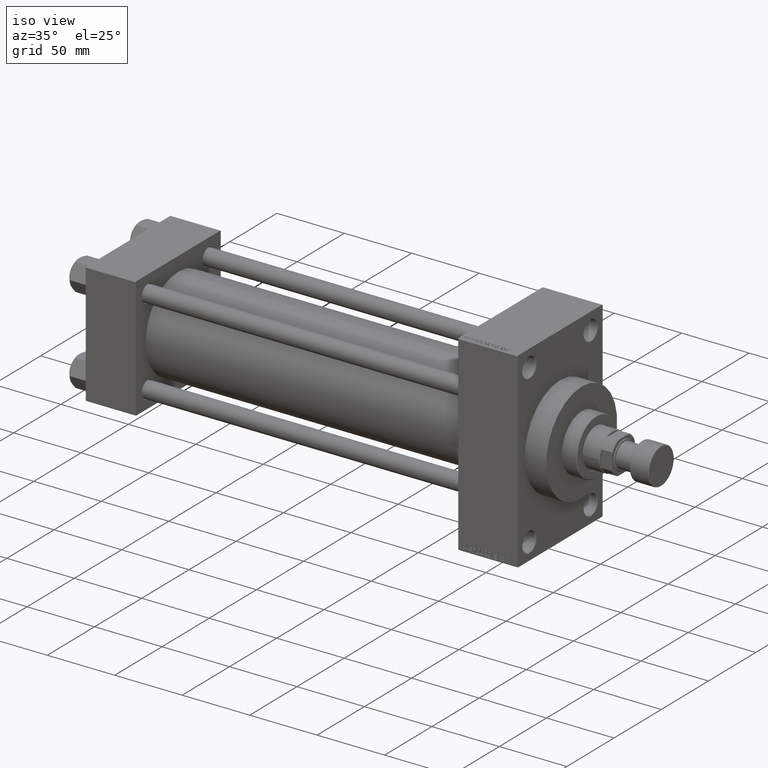
[diagram: clean part render]
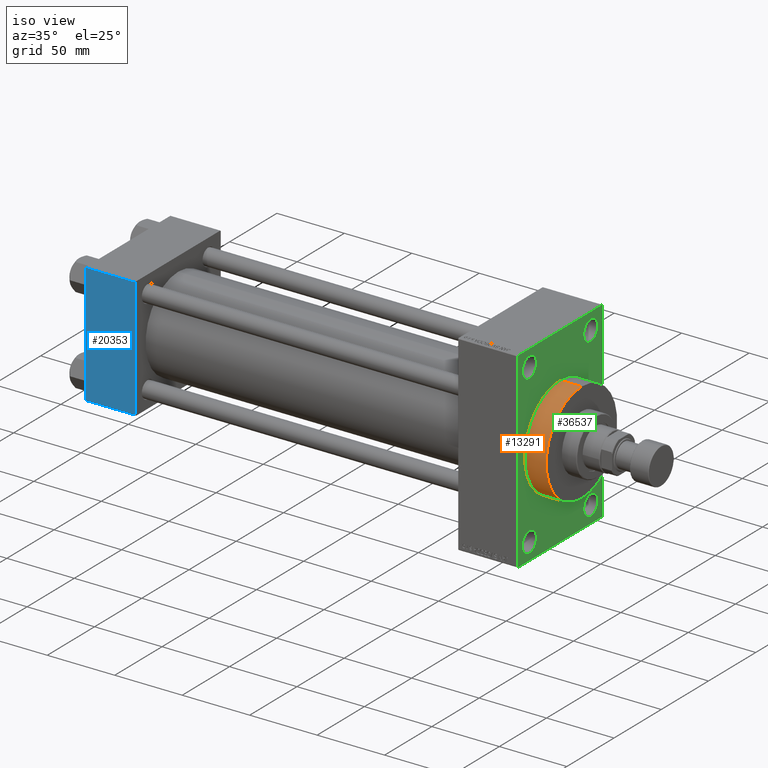
[diagram: same view with three faces highlighted in distinct colors, each labeled with its STEP entity id]
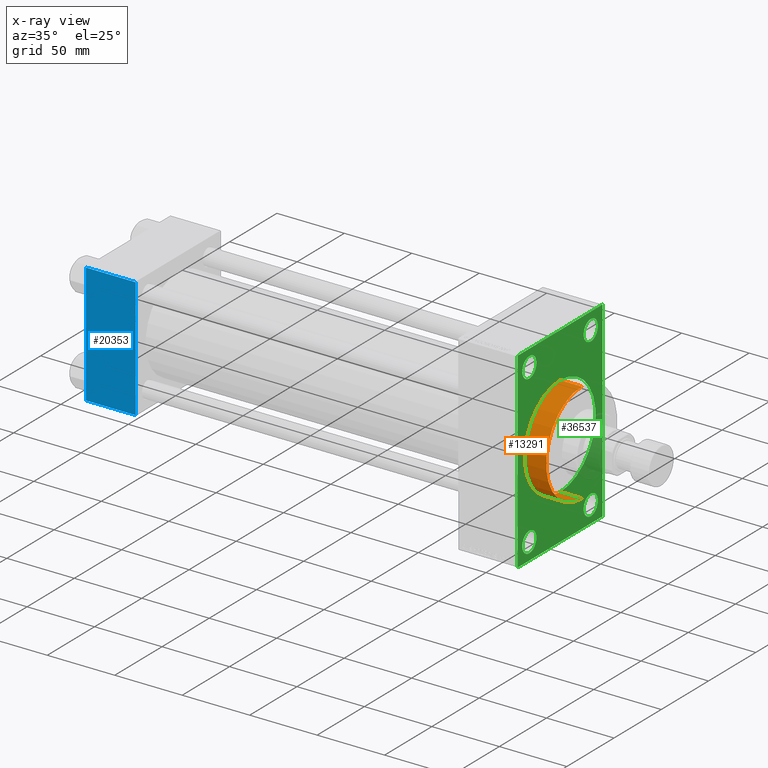
[diagram: x-ray of the same camera — body ghosted, the three highlighted faces saturated]
A machine part, iso view with three faces highlighted in distinct colors.
The next image is the same camera in x-ray (body ghosted, the three faces saturated) — at least one of them is partly hidden behind the body in this view.
Their STEP definitions:

[orange] entity #13291 — the highlighted cylindrical surface (partial cylindrical patch) has radius 37.5 mm, axis along (-1, -0, -0).
#1751 = EDGE_LOOP ( 'NONE', ( #32411, #46226, #30139, #8284 ) ) ;
#1995 = CIRCLE ( 'NONE', #18907, 37.50000000000000711 ) ;
#2207 = FACE_OUTER_BOUND ( 'NONE', #1751, .T. ) ;
#3064 = VERTEX_POINT ( 'NONE', #8578 ) ;
#3184 = VECTOR ( 'NONE', #38997, 1000.000000000000000 ) ;
#4112 = DIRECTION ( 'NONE',  ( 0.000000000000000000, 0.000000000000000000, -1.000000000000000000 ) ) ;
#8284 = ORIENTED_EDGE ( 'NONE', *, *, #18244, .T. ) ;
#8578 = CARTESIAN_POINT ( 'NONE',  ( 335.9999999999999432, 4.592425496802575156E-15, -37.50000000000000711 ) ) ;
#10397 = DIRECTION ( 'NONE',  ( 1.000000000000000000, 0.000000000000000000, 0.000000000000000000 ) ) ;
#10530 = DIRECTION ( 'NONE',  ( 0.000000000000000000, 0.000000000000000000, -1.000000000000000000 ) ) ;
#13288 = CARTESIAN_POINT ( 'NONE',  ( 335.9999999999999432, 0.000000000000000000, 0.000000000000000000 ) ) ;
#13291 = ADVANCED_FACE ( 'NONE', ( #2207 ), #31599, .T. ) ;
#13554 = CARTESIAN_POINT ( 'NONE',  ( 319.9999999999999432, 4.592425496802575156E-15, -37.50000000000000711 ) ) ;
#13653 = CARTESIAN_POINT ( 'NONE',  ( 335.9999999999999432, 0.000000000000000000, 37.50000000000000711 ) ) ;
#14610 = CARTESIAN_POINT ( 'NONE',  ( 319.9999999999999432, 0.000000000000000000, 0.000000000000000000 ) ) ;
#14757 = EDGE_CURVE ( 'NONE', #21987, #3064, #24303, .T. ) ;
#18244 = EDGE_CURVE ( 'NONE', #30742, #45841, #1995, .T. ) ;
#18907 = AXIS2_PLACEMENT_3D ( 'NONE', #14610, #39714, #10530 ) ;
#21364 = DIRECTION ( 'NONE',  ( -1.000000000000000000, -0.000000000000000000, -0.000000000000000000 ) ) ;
#21987 = VERTEX_POINT ( 'NONE', #30470 ) ;
#24303 = CIRCLE ( 'NONE', #47468, 37.50000000000000711 ) ;
#25306 = CARTESIAN_POINT ( 'NONE',  ( 319.9999999999999432, 0.000000000000000000, 37.50000000000000711 ) ) ;
#27988 = DIRECTION ( 'NONE',  ( -1.000000000000000000, -0.000000000000000000, -0.000000000000000000 ) ) ;
#30139 = ORIENTED_EDGE ( 'NONE', *, *, #34611, .T. ) ;
#30470 = CARTESIAN_POINT ( 'NONE',  ( 335.9999999999999432, 0.000000000000000000, 37.50000000000000711 ) ) ;
#30742 = VERTEX_POINT ( 'NONE', #25306 ) ;
#31599 = CYLINDRICAL_SURFACE ( 'NONE', #31971, 37.50000000000000711 ) ;
#31971 = AXIS2_PLACEMENT_3D ( 'NONE', #13288, #27988, #35478 ) ;
#32411 = ORIENTED_EDGE ( 'NONE', *, *, #39542, .F. ) ;
#34611 = EDGE_CURVE ( 'NONE', #21987, #30742, #43090, .T. ) ;
#35478 = DIRECTION ( 'NONE',  ( 0.000000000000000000, 0.000000000000000000, 1.000000000000000000 ) ) ;
#36791 = LINE ( 'NONE', #46962, #39645 ) ;
#37151 = CARTESIAN_POINT ( 'NONE',  ( 335.9999999999999432, 0.000000000000000000, 0.000000000000000000 ) ) ;
#38997 = DIRECTION ( 'NONE',  ( -1.000000000000000000, -0.000000000000000000, -0.000000000000000000 ) ) ;
#39542 = EDGE_CURVE ( 'NONE', #3064, #45841, #36791, .T. ) ;
#39645 = VECTOR ( 'NONE', #21364, 1000.000000000000000 ) ;
#39714 = DIRECTION ( 'NONE',  ( 1.000000000000000000, 0.000000000000000000, 0.000000000000000000 ) ) ;
#43090 = LINE ( 'NONE', #13653, #3184 ) ;
#45841 = VERTEX_POINT ( 'NONE', #13554 ) ;
#46226 = ORIENTED_EDGE ( 'NONE', *, *, #14757, .F. ) ;
#46962 = CARTESIAN_POINT ( 'NONE',  ( 335.9999999999999432, 4.592425496802575156E-15, -37.50000000000000711 ) ) ;
#47468 = AXIS2_PLACEMENT_3D ( 'NONE', #37151, #10397, #4112 ) ;

[blue] entity #20353 — the highlighted planar face has unit normal (0, 1, 0).
#179 = VECTOR ( 'NONE', #23048, 1000.000000000000000 ) ;
#527 = VERTEX_POINT ( 'NONE', #32482 ) ;
#1801 = PLANE ( 'NONE',  #28220 ) ;
#3165 = LINE ( 'NONE', #3404, #26535 ) ;
#3404 = CARTESIAN_POINT ( 'NONE',  ( 37.00000000000000000, -45.00000000000000000, -44.49999999999998579 ) ) ;
#4030 = VERTEX_POINT ( 'NONE', #29718 ) ;
#5404 = FACE_OUTER_BOUND ( 'NONE', #13853, .T. ) ;
#8200 = VECTOR ( 'NONE', #18359, 1000.000000000000000 ) ;
#9758 = EDGE_CURVE ( 'NONE', #23221, #4030, #11252, .T. ) ;
#10152 = ORIENTED_EDGE ( 'NONE', *, *, #15437, .T. ) ;
#11252 = LINE ( 'NONE', #37782, #179 ) ;
#13853 = EDGE_LOOP ( 'NONE', ( #31624, #10152, #34992, #39510 ) ) ;
#15437 = EDGE_CURVE ( 'NONE', #25339, #4030, #3165, .T. ) ;
#16470 = DIRECTION ( 'NONE',  ( -0.000000000000000000, 1.000000000000000000, 7.709882115452478166E-17 ) ) ;
#17650 = EDGE_CURVE ( 'NONE', #527, #25339, #34854, .T. ) ;
#18084 = DIRECTION ( 'NONE',  ( 1.000000000000000000, 0.000000000000000000, 0.000000000000000000 ) ) ;
#18359 = DIRECTION ( 'NONE',  ( -1.000000000000000000, 0.000000000000000000, 0.000000000000000000 ) ) ;
#20353 = ADVANCED_FACE ( 'NONE', ( #5404 ), #1801, .F. ) ;
#20403 = EDGE_CURVE ( 'NONE', #23221, #527, #47352, .T. ) ;
#23048 = DIRECTION ( 'NONE',  ( 0.000000000000000000, 7.709882115452476934E-17, -1.000000000000000000 ) ) ;
#23221 = VERTEX_POINT ( 'NONE', #35208 ) ;
#25339 = VERTEX_POINT ( 'NONE', #40515 ) ;
#26535 = VECTOR ( 'NONE', #18084, 1000.000000000000000 ) ;
#28220 = AXIS2_PLACEMENT_3D ( 'NONE', #45692, #16470, #31182 ) ;
#29718 = CARTESIAN_POINT ( 'NONE',  ( 37.00000000000000000, -45.00000000000000000, -44.49999999999995737 ) ) ;
#30421 = VECTOR ( 'NONE', #39175, 1000.000000000000000 ) ;
#31182 = DIRECTION ( 'NONE',  ( 0.000000000000000000, -7.709882115452478166E-17, 1.000000000000000000 ) ) ;
#31624 = ORIENTED_EDGE ( 'NONE', *, *, #17650, .T. ) ;
#32482 = CARTESIAN_POINT ( 'NONE',  ( 0.000000000000000000, -45.00000000000000711, 44.49999999999997158 ) ) ;
#34854 = LINE ( 'NONE', #45954, #30421 ) ;
#34992 = ORIENTED_EDGE ( 'NONE', *, *, #9758, .F. ) ;
#35208 = CARTESIAN_POINT ( 'NONE',  ( 37.00000000000000000, -45.00000000000000711, 44.49999999999997158 ) ) ;
#37782 = CARTESIAN_POINT ( 'NONE',  ( 37.00000000000000000, -45.00000000000000711, 45.00000000000000000 ) ) ;
#39175 = DIRECTION ( 'NONE',  ( 0.000000000000000000, 7.709882115452476934E-17, -1.000000000000000000 ) ) ;
#39510 = ORIENTED_EDGE ( 'NONE', *, *, #20403, .T. ) ;
#40515 = CARTESIAN_POINT ( 'NONE',  ( 0.000000000000000000, -45.00000000000000000, -44.49999999999995737 ) ) ;
#43972 = CARTESIAN_POINT ( 'NONE',  ( 37.00000000000000000, -45.00000000000000711, 44.49999999999997158 ) ) ;
#45692 = CARTESIAN_POINT ( 'NONE',  ( 37.00000000000000000, -45.00000000000000711, 45.00000000000000000 ) ) ;
#45954 = CARTESIAN_POINT ( 'NONE',  ( 0.000000000000000000, -45.00000000000000711, 45.00000000000000000 ) ) ;
#47352 = LINE ( 'NONE', #43972, #8200 ) ;

[green] entity #36537 — the highlighted planar face has unit normal (-1, 0, 0).
#33 = DIRECTION ( 'NONE',  ( -1.000000000000000000, 0.000000000000000000, -0.000000000000000000 ) ) ;
#50 = AXIS2_PLACEMENT_3D ( 'NONE', #13219, #27922, #42655 ) ;
#1152 = CARTESIAN_POINT ( 'NONE',  ( 319.9999999999999432, -32.50000000000000000, -66.00000000000004263 ) ) ;
#1479 = VERTEX_POINT ( 'NONE', #13706 ) ;
#1899 = VERTEX_POINT ( 'NONE', #33160 ) ;
#1964 = PLANE ( 'NONE',  #40970 ) ;
#1995 = CIRCLE ( 'NONE', #18907, 37.50000000000000711 ) ;
#2116 = CARTESIAN_POINT ( 'NONE',  ( 319.9999999999999432, 45.00000000000002132, 71.00000000000000000 ) ) ;
#2126 = EDGE_LOOP ( 'NONE', ( #45568, #10421 ) ) ;
#2399 = DIRECTION ( 'NONE',  ( 0.000000000000000000, 0.000000000000000000, -1.000000000000000000 ) ) ;
#2665 = CARTESIAN_POINT ( 'NONE',  ( 319.9999999999999432, 0.000000000000000000, 0.000000000000000000 ) ) ;
#3514 = DIRECTION ( 'NONE',  ( -1.000000000000000000, 0.000000000000000000, -0.000000000000000000 ) ) ;
#3891 = CARTESIAN_POINT ( 'NONE',  ( 319.9999999999999432, 32.50000000000000711, -58.50000000000000000 ) ) ;
#3925 = CARTESIAN_POINT ( 'NONE',  ( 319.9999999999999432, -44.49999999999991473, -71.00000000000000000 ) ) ;
#4233 = CARTESIAN_POINT ( 'NONE',  ( 319.9999999999999432, -44.99999999999997158, -70.50000000000000000 ) ) ;
#4420 = CARTESIAN_POINT ( 'NONE',  ( 319.9999999999999432, 45.00000000000001421, -70.49999999999997158 ) ) ;
#4676 = CIRCLE ( 'NONE', #50, 7.500000000000047962 ) ;
#4874 = LINE ( 'NONE', #19547, #26700 ) ;
#4893 = ORIENTED_EDGE ( 'NONE', *, *, #18244, .F. ) ;
#5690 = ORIENTED_EDGE ( 'NONE', *, *, #14717, .F. ) ;
#6137 = VECTOR ( 'NONE', #14991, 1000.000000000000114 ) ;
#6651 = DIRECTION ( 'NONE',  ( 0.000000000000000000, 0.000000000000000000, 1.000000000000000000 ) ) ;
#6982 = VECTOR ( 'NONE', #14125, 999.9999999999998863 ) ;
#7812 = EDGE_CURVE ( 'NONE', #45841, #30742, #8561, .T. ) ;
#7961 = ORIENTED_EDGE ( 'NONE', *, *, #37457, .T. ) ;
#7963 = CARTESIAN_POINT ( 'NONE',  ( 319.9999999999999432, -44.49999999999988631, -71.00000000000000000 ) ) ;
#8099 = ORIENTED_EDGE ( 'NONE', *, *, #9325, .T. ) ;
#8540 = CARTESIAN_POINT ( 'NONE',  ( 319.9999999999999432, 44.50000000000001421, -70.99999999999998579 ) ) ;
#8561 = CIRCLE ( 'NONE', #42449, 37.50000000000000711 ) ;
#8747 = LINE ( 'NONE', #44933, #47721 ) ;
#9081 = ORIENTED_EDGE ( 'NONE', *, *, #43424, .T. ) ;
#9325 = EDGE_CURVE ( 'NONE', #10554, #21871, #30112, .T. ) ;
#9439 = FACE_OUTER_BOUND ( 'NONE', #46261, .T. ) ;
#9530 = DIRECTION ( 'NONE',  ( 0.000000000000000000, 0.000000000000000000, 1.000000000000000000 ) ) ;
#9697 = LINE ( 'NONE', #35249, #14325 ) ;
#10064 = DIRECTION ( 'NONE',  ( -1.000000000000000000, 0.000000000000000000, -0.000000000000000000 ) ) ;
#10421 = ORIENTED_EDGE ( 'NONE', *, *, #39519, .T. ) ;
#10530 = DIRECTION ( 'NONE',  ( 0.000000000000000000, 0.000000000000000000, -1.000000000000000000 ) ) ;
#10554 = VERTEX_POINT ( 'NONE', #38376 ) ;
#11006 = DIRECTION ( 'NONE',  ( 0.000000000000000000, 0.000000000000000000, 1.000000000000000000 ) ) ;
#11242 = CARTESIAN_POINT ( 'NONE',  ( 319.9999999999999432, -44.99999999999997158, 70.49999999999998579 ) ) ;
#12134 = EDGE_CURVE ( 'NONE', #24703, #45782, #25902, .T. ) ;
#12784 = CIRCLE ( 'NONE', #22746, 7.500000000000055067 ) ;
#12924 = CARTESIAN_POINT ( 'NONE',  ( 319.9999999999999432, -44.49999999999995026, 70.99999999999998579 ) ) ;
#13219 = CARTESIAN_POINT ( 'NONE',  ( 319.9999999999999432, -32.50000000000000000, 58.50000000000000711 ) ) ;
#13231 = VERTEX_POINT ( 'NONE', #27749 ) ;
#13554 = CARTESIAN_POINT ( 'NONE',  ( 319.9999999999999432, 4.592425496802575156E-15, -37.50000000000000711 ) ) ;
#13706 = CARTESIAN_POINT ( 'NONE',  ( 319.9999999999999432, -32.50000000000000000, 66.00000000000005684 ) ) ;
#14125 = DIRECTION ( 'NONE',  ( -0.000000000000000000, 0.7071067811865376918, 0.7071067811865574537 ) ) ;
#14325 = VECTOR ( 'NONE', #23916, 1000.000000000000000 ) ;
#14349 = CARTESIAN_POINT ( 'NONE',  ( 319.9999999999999432, 32.50000000000000711, -58.50000000000000000 ) ) ;
#14610 = CARTESIAN_POINT ( 'NONE',  ( 319.9999999999999432, 0.000000000000000000, 0.000000000000000000 ) ) ;
#14717 = EDGE_CURVE ( 'NONE', #24703, #32727, #9697, .T. ) ;
#14991 = DIRECTION ( 'NONE',  ( 0.000000000000000000, 0.7071067811865965336, -0.7071067811864985009 ) ) ;
#16154 = VECTOR ( 'NONE', #46718, 1000.000000000000000 ) ;
#16157 = EDGE_LOOP ( 'NONE', ( #4893, #19244 ) ) ;
#16530 = VERTEX_POINT ( 'NONE', #1152 ) ;
#16564 = EDGE_LOOP ( 'NONE', ( #28726, #44661 ) ) ;
#16821 = DIRECTION ( 'NONE',  ( 1.000000000000000000, 0.000000000000000000, 0.000000000000000000 ) ) ;
#17338 = DIRECTION ( 'NONE',  ( -1.000000000000000000, 0.000000000000000000, -0.000000000000000000 ) ) ;
#17790 = CARTESIAN_POINT ( 'NONE',  ( 319.9999999999999432, 0.000000000000000000, 0.000000000000000000 ) ) ;
#18045 = DIRECTION ( 'NONE',  ( 0.000000000000000000, -4.886545002751570165E-17, -1.000000000000000000 ) ) ;
#18124 = EDGE_LOOP ( 'NONE', ( #18554, #8099 ) ) ;
#18153 = CARTESIAN_POINT ( 'NONE',  ( 319.9999999999999432, -44.99999999999997158, 70.99999999999998579 ) ) ;
#18216 = EDGE_CURVE ( 'NONE', #44976, #16530, #12784, .T. ) ;
#18244 = EDGE_CURVE ( 'NONE', #30742, #45841, #1995, .T. ) ;
#18313 = CARTESIAN_POINT ( 'NONE',  ( 319.9999999999999432, 32.50000000000000711, 58.50000000000000711 ) ) ;
#18554 = ORIENTED_EDGE ( 'NONE', *, *, #22601, .T. ) ;
#18798 = DIRECTION ( 'NONE',  ( -1.000000000000000000, 0.000000000000000000, -0.000000000000000000 ) ) ;
#18907 = AXIS2_PLACEMENT_3D ( 'NONE', #14610, #39714, #10530 ) ;
#19244 = ORIENTED_EDGE ( 'NONE', *, *, #7812, .F. ) ;
#19412 = ORIENTED_EDGE ( 'NONE', *, *, #21750, .T. ) ;
#19519 = ORIENTED_EDGE ( 'NONE', *, *, #42182, .T. ) ;
#19547 = CARTESIAN_POINT ( 'NONE',  ( 319.9999999999999432, -44.99999999999997158, 70.49999999999998579 ) ) ;
#19666 = CARTESIAN_POINT ( 'NONE',  ( 319.9999999999999432, -32.50000000000000000, 50.99999999999996447 ) ) ;
#20823 = DIRECTION ( 'NONE',  ( -1.000000000000000000, 0.000000000000000000, -0.000000000000000000 ) ) ;
#20918 = ORIENTED_EDGE ( 'NONE', *, *, #31778, .T. ) ;
#21573 = AXIS2_PLACEMENT_3D ( 'NONE', #14349, #3514, #6651 ) ;
#21750 = EDGE_CURVE ( 'NONE', #45491, #44792, #4874, .T. ) ;
#21847 = CARTESIAN_POINT ( 'NONE',  ( 319.9999999999999432, -32.50000000000000000, 58.50000000000000711 ) ) ;
#21871 = VERTEX_POINT ( 'NONE', #27686 ) ;
#21895 = CIRCLE ( 'NONE', #46574, 7.500000000000047962 ) ;
#22010 = LINE ( 'NONE', #18153, #47185 ) ;
#22019 = CARTESIAN_POINT ( 'NONE',  ( 319.9999999999999432, 44.49999999999996447, 71.00000000000000000 ) ) ;
#22601 = EDGE_CURVE ( 'NONE', #21871, #10554, #42184, .T. ) ;
#22679 = VECTOR ( 'NONE', #18045, 1000.000000000000000 ) ;
#22746 = AXIS2_PLACEMENT_3D ( 'NONE', #24747, #10064, #24983 ) ;
#23677 = AXIS2_PLACEMENT_3D ( 'NONE', #18313, #33, #36437 ) ;
#23881 = DIRECTION ( 'NONE',  ( -0.000000000000000000, 0.000000000000000000, 1.000000000000000000 ) ) ;
#23916 = DIRECTION ( 'NONE',  ( 0.000000000000000000, -1.000000000000000000, -1.541976423090495633E-16 ) ) ;
#24703 = VERTEX_POINT ( 'NONE', #8540 ) ;
#24747 = CARTESIAN_POINT ( 'NONE',  ( 319.9999999999999432, -32.50000000000000000, -58.49999999999999289 ) ) ;
#24812 = DIRECTION ( 'NONE',  ( 0.000000000000000000, 0.000000000000000000, 1.000000000000000000 ) ) ;
#24983 = DIRECTION ( 'NONE',  ( 0.000000000000000000, 0.000000000000000000, 1.000000000000000000 ) ) ;
#25010 = ORIENTED_EDGE ( 'NONE', *, *, #40520, .T. ) ;
#25306 = CARTESIAN_POINT ( 'NONE',  ( 319.9999999999999432, 0.000000000000000000, 37.50000000000000711 ) ) ;
#25902 = LINE ( 'NONE', #29751, #6982 ) ;
#26700 = VECTOR ( 'NONE', #34276, 1000.000000000000000 ) ;
#27652 = VERTEX_POINT ( 'NONE', #4233 ) ;
#27686 = CARTESIAN_POINT ( 'NONE',  ( 319.9999999999999432, 32.50000000000000711, 50.99999999999996447 ) ) ;
#27749 = CARTESIAN_POINT ( 'NONE',  ( 319.9999999999999432, 32.50000000000000711, -50.99999999999993605 ) ) ;
#27922 = DIRECTION ( 'NONE',  ( -1.000000000000000000, 0.000000000000000000, -0.000000000000000000 ) ) ;
#28319 = EDGE_CURVE ( 'NONE', #47447, #13231, #45422, .T. ) ;
#28726 = ORIENTED_EDGE ( 'NONE', *, *, #28319, .T. ) ;
#29751 = CARTESIAN_POINT ( 'NONE',  ( 319.9999999999999432, 45.00000000000001421, -70.49999999999997158 ) ) ;
#29919 = LINE ( 'NONE', #3925, #6137 ) ;
#30112 = CIRCLE ( 'NONE', #40952, 7.500000000000047962 ) ;
#30742 = VERTEX_POINT ( 'NONE', #25306 ) ;
#30763 = AXIS2_PLACEMENT_3D ( 'NONE', #3891, #18798, #40779 ) ;
#31778 = EDGE_CURVE ( 'NONE', #27652, #32727, #29919, .T. ) ;
#32278 = VERTEX_POINT ( 'NONE', #19666 ) ;
#32479 = EDGE_CURVE ( 'NONE', #13231, #47447, #43147, .T. ) ;
#32727 = VERTEX_POINT ( 'NONE', #7963 ) ;
#32866 = DIRECTION ( 'NONE',  ( 0.000000000000000000, 0.000000000000000000, -1.000000000000000000 ) ) ;
#33129 = CARTESIAN_POINT ( 'NONE',  ( 319.9999999999999432, -32.50000000000000000, -50.99999999999992895 ) ) ;
#33160 = CARTESIAN_POINT ( 'NONE',  ( 319.9999999999999432, 45.00000000000002132, 70.50000000000000000 ) ) ;
#33805 = CIRCLE ( 'NONE', #34582, 7.500000000000055067 ) ;
#34276 = DIRECTION ( 'NONE',  ( -0.000000000000000000, -0.7071067811865426878, -0.7071067811865524577 ) ) ;
#34582 = AXIS2_PLACEMENT_3D ( 'NONE', #43166, #35449, #24812 ) ;
#34988 = FACE_BOUND ( 'NONE', #2126, .T. ) ;
#35145 = LINE ( 'NONE', #2116, #16154 ) ;
#35147 = VERTEX_POINT ( 'NONE', #22019 ) ;
#35249 = CARTESIAN_POINT ( 'NONE',  ( 319.9999999999999432, 45.00000000000001421, -70.99999999999998579 ) ) ;
#35449 = DIRECTION ( 'NONE',  ( -1.000000000000000000, 0.000000000000000000, -0.000000000000000000 ) ) ;
#35699 = FACE_BOUND ( 'NONE', #18124, .T. ) ;
#35909 = ORIENTED_EDGE ( 'NONE', *, *, #18216, .T. ) ;
#35926 = FACE_BOUND ( 'NONE', #16564, .T. ) ;
#36437 = DIRECTION ( 'NONE',  ( 0.000000000000000000, 0.000000000000000000, 1.000000000000000000 ) ) ;
#36537 = ADVANCED_FACE ( 'NONE', ( #34988, #42474, #35926, #35699, #46331, #9439 ), #1964, .F. ) ;
#37251 = EDGE_LOOP ( 'NONE', ( #9081, #35909 ) ) ;
#37457 = EDGE_CURVE ( 'NONE', #44792, #27652, #22010, .T. ) ;
#38376 = CARTESIAN_POINT ( 'NONE',  ( 319.9999999999999432, 32.50000000000000711, 66.00000000000005684 ) ) ;
#39301 = EDGE_CURVE ( 'NONE', #1899, #45782, #43635, .T. ) ;
#39519 = EDGE_CURVE ( 'NONE', #1479, #32278, #21895, .T. ) ;
#39714 = DIRECTION ( 'NONE',  ( 1.000000000000000000, 0.000000000000000000, 0.000000000000000000 ) ) ;
#40011 = CARTESIAN_POINT ( 'NONE',  ( 319.9999999999999432, 45.00000000000002132, 71.00000000000000000 ) ) ;
#40447 = CARTESIAN_POINT ( 'NONE',  ( 319.9999999999999432, 32.50000000000000711, -66.00000000000005684 ) ) ;
#40520 = EDGE_CURVE ( 'NONE', #1899, #35147, #8747, .T. ) ;
#40779 = DIRECTION ( 'NONE',  ( 0.000000000000000000, 0.000000000000000000, 1.000000000000000000 ) ) ;
#40952 = AXIS2_PLACEMENT_3D ( 'NONE', #46183, #20823, #9530 ) ;
#40970 = AXIS2_PLACEMENT_3D ( 'NONE', #2665, #17338, #23881 ) ;
#41306 = ORIENTED_EDGE ( 'NONE', *, *, #12134, .T. ) ;
#42182 = EDGE_CURVE ( 'NONE', #35147, #45491, #35145, .T. ) ;
#42184 = CIRCLE ( 'NONE', #23677, 7.500000000000047962 ) ;
#42449 = AXIS2_PLACEMENT_3D ( 'NONE', #17790, #16821, #2399 ) ;
#42474 = FACE_BOUND ( 'NONE', #37251, .T. ) ;
#42655 = DIRECTION ( 'NONE',  ( 0.000000000000000000, 0.000000000000000000, 1.000000000000000000 ) ) ;
#43147 = CIRCLE ( 'NONE', #21573, 7.500000000000062172 ) ;
#43166 = CARTESIAN_POINT ( 'NONE',  ( 319.9999999999999432, -32.50000000000000000, -58.49999999999999289 ) ) ;
#43424 = EDGE_CURVE ( 'NONE', #16530, #44976, #33805, .T. ) ;
#43635 = LINE ( 'NONE', #40011, #22679 ) ;
#44661 = ORIENTED_EDGE ( 'NONE', *, *, #32479, .T. ) ;
#44792 = VERTEX_POINT ( 'NONE', #11242 ) ;
#44933 = CARTESIAN_POINT ( 'NONE',  ( 319.9999999999999432, 44.49999999999996447, 71.00000000000000000 ) ) ;
#44976 = VERTEX_POINT ( 'NONE', #33129 ) ;
#45396 = DIRECTION ( 'NONE',  ( 0.000000000000000000, -0.7071067811865867636, 0.7071067811865081598 ) ) ;
#45422 = CIRCLE ( 'NONE', #30763, 7.500000000000062172 ) ;
#45491 = VERTEX_POINT ( 'NONE', #12924 ) ;
#45568 = ORIENTED_EDGE ( 'NONE', *, *, #47415, .T. ) ;
#45782 = VERTEX_POINT ( 'NONE', #4420 ) ;
#45841 = VERTEX_POINT ( 'NONE', #13554 ) ;
#46183 = CARTESIAN_POINT ( 'NONE',  ( 319.9999999999999432, 32.50000000000000711, 58.50000000000000711 ) ) ;
#46261 = EDGE_LOOP ( 'NONE', ( #7961, #20918, #5690, #41306, #46335, #25010, #19519, #19412 ) ) ;
#46331 = FACE_BOUND ( 'NONE', #16157, .T. ) ;
#46335 = ORIENTED_EDGE ( 'NONE', *, *, #39301, .F. ) ;
#46574 = AXIS2_PLACEMENT_3D ( 'NONE', #21847, #47674, #11006 ) ;
#46718 = DIRECTION ( 'NONE',  ( 0.000000000000000000, -1.000000000000000000, -1.541976423090495387E-16 ) ) ;
#47185 = VECTOR ( 'NONE', #32866, 1000.000000000000000 ) ;
#47415 = EDGE_CURVE ( 'NONE', #32278, #1479, #4676, .T. ) ;
#47447 = VERTEX_POINT ( 'NONE', #40447 ) ;
#47674 = DIRECTION ( 'NONE',  ( -1.000000000000000000, 0.000000000000000000, -0.000000000000000000 ) ) ;
#47721 = VECTOR ( 'NONE', #45396, 1000.000000000000000 ) ;